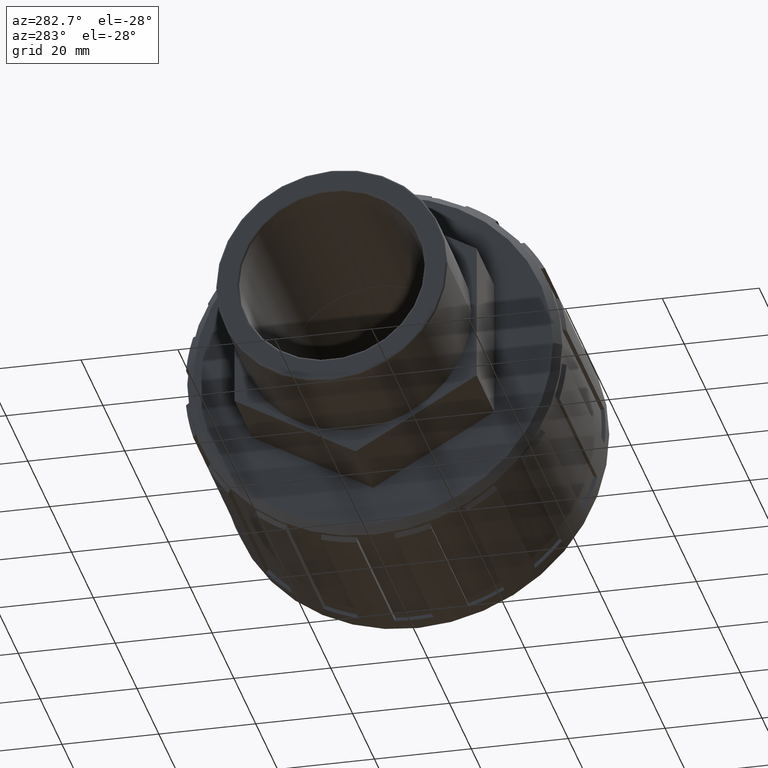
[diagram: clean part render]
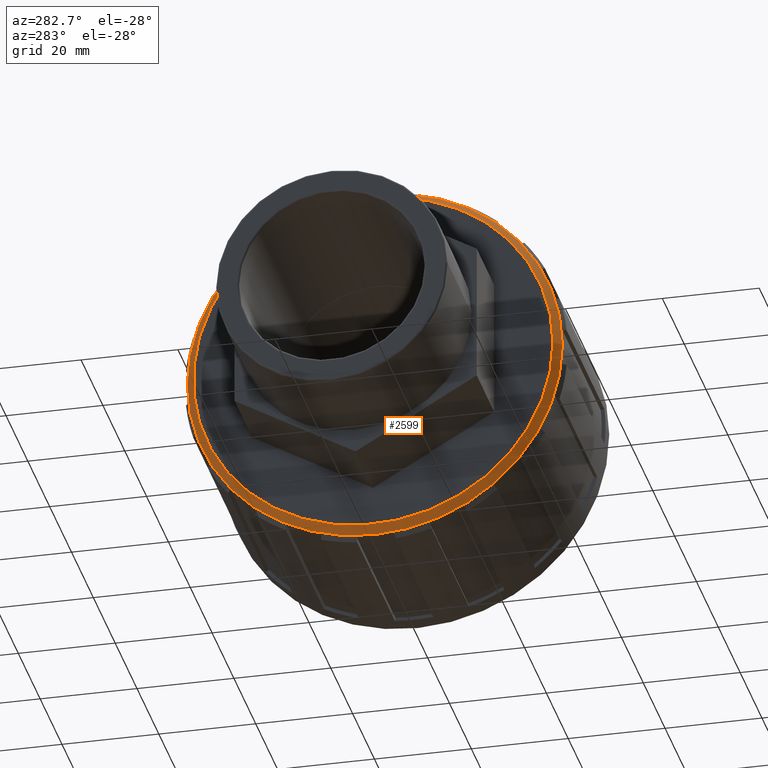
[diagram: same view with one face highlighted and labeled with its STEP entity id]
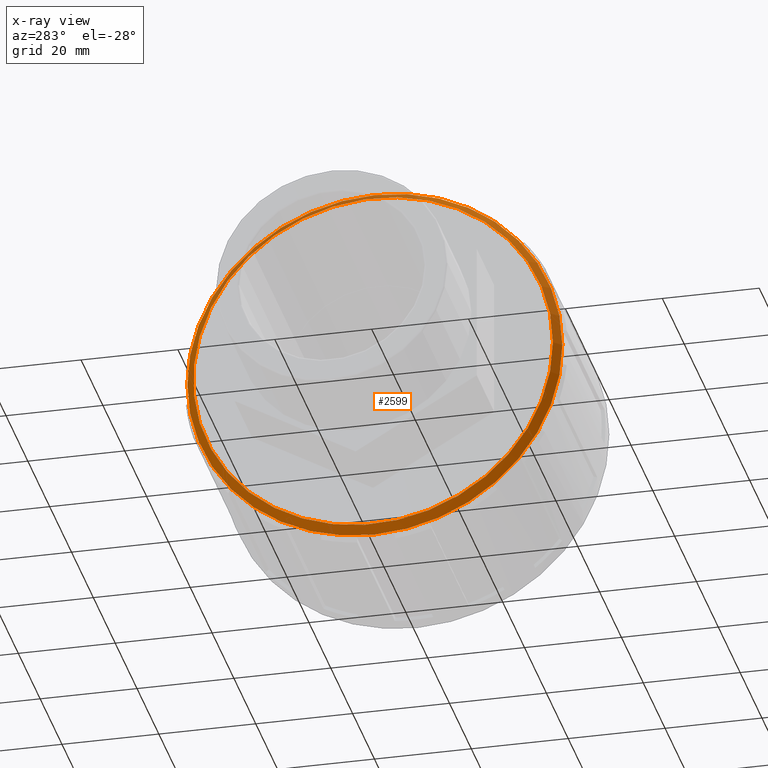
[diagram: x-ray of the same camera — body ghosted, the highlighted face saturated]
A machine part, auxiliary view. The second image highlights one B-rep face of the part: STEP entity #2599.
The next image is the same camera in x-ray: the body ghosted, the highlighted face saturated — about 9% of this face is hidden behind the body in this view.
In plain terms, the highlighted conical surface has half-angle 45 deg.
Its self-contained STEP definition (entity closure, byte-faithful):
#48=CONICAL_SURFACE('',#2866,37.92,45.0000000000001);
#62=FACE_BOUND('',#507,.T.);
#216=CIRCLE('',#2867,38.71);
#217=CIRCLE('',#2868,37.13);
#353=FACE_OUTER_BOUND('',#506,.T.);
#506=EDGE_LOOP('',(#2291));
#507=EDGE_LOOP('',(#2292));
#1257=VERTEX_POINT('',#4416);
#1258=VERTEX_POINT('',#4418);
#1630=EDGE_CURVE('',#1257,#1257,#216,.T.);
#1631=EDGE_CURVE('',#1258,#1258,#217,.T.);
#2291=ORIENTED_EDGE('',*,*,#1630,.T.);
#2292=ORIENTED_EDGE('',*,*,#1631,.T.);
#2599=ADVANCED_FACE('',(#353,#62),#48,.T.);
#2866=AXIS2_PLACEMENT_3D('',#4415,#3637,#3638);
#2867=AXIS2_PLACEMENT_3D('',#4417,#3639,#3640);
#2868=AXIS2_PLACEMENT_3D('',#4419,#3641,#3642);
#3637=DIRECTION('center_axis',(1.,1.83697019872103E-16,0.));
#3638=DIRECTION('ref_axis',(-1.84770275003994E-16,1.,0.));
#3639=DIRECTION('center_axis',(-1.,-1.83697019872103E-16,0.));
#3640=DIRECTION('ref_axis',(-1.85799723803972E-16,1.,0.));
#3641=DIRECTION('center_axis',(1.,1.83697019872103E-16,0.));
#3642=DIRECTION('ref_axis',(-1.83697019872103E-16,1.,0.));
#4415=CARTESIAN_POINT('Origin',(-9.21,7.12560740083888E-15,0.));
#4416=CARTESIAN_POINT('',(-8.42,-38.71,4.7406077594994E-15));
#4417=CARTESIAN_POINT('Origin',(-8.42,7.27072804653784E-15,0.));
#4418=CARTESIAN_POINT('',(-9.99999999999999,-37.13,-4.54711356523412E-15));
#4419=CARTESIAN_POINT('Origin',(-10.,6.98048675513992E-15,0.));